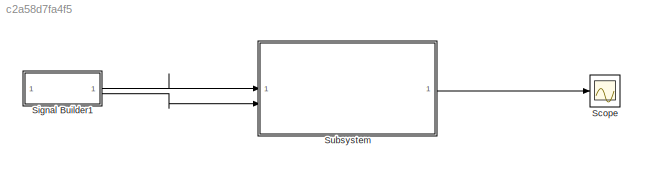
MODEL slx_c2a58d7fa4f5
KIND model
CONFIG AbsTol = auto
CONFIG EnableMultiTasking = off
CONFIG FixedStep = 0.001
CONFIG MaxStep = auto
CONFIG MinStep = auto
CONFIG RelTol = 1e-3
CONFIG SampleTimeConstraint = Unconstrained
CONFIG SolverName = ode4
CONFIG StartTime = 0.0
CONFIG StopTime = 20
BLOCK [Scope] Scope
  Floating = off
  NumInputPorts = 1
  ScopeSpecificationString = Simulink.scopes.TimeScopeBlockCfg('CurrentConfiguration', extmgr.ConfigurationSet(extmgr.Configuration('Core','General UI',true),extmgr.Configuration('Core','Source UI',true),extmgr.Configuration('Sources','WiredSimulink',true,'DataLoggingVariableName','ScopeData1'),extmgr.Configuration('Visuals','Time Domain',true),extmgr.Configuration('Tools','Plot Navigation',true),extmgr.Configuration('Tools',...<+40ch>
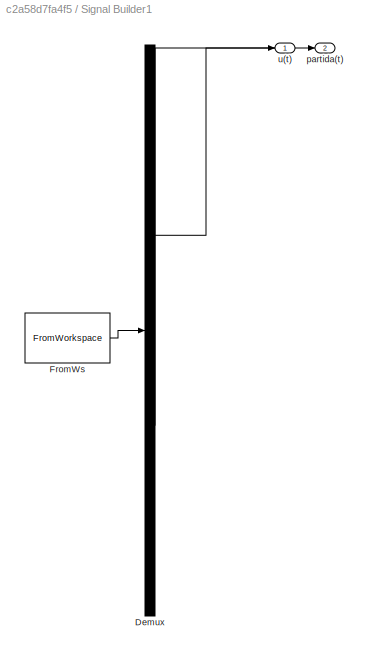
BLOCK [SubSystem] Signal Builder1
  ClipboardFcn = sigbuilder_block('clipboard');
  CloseFcn = sigbuilder_block('close');
  ContinueFcn = sigbuilder_block('continue');
  CopyFcn = sigbuilder_block('copy');
  DeleteFcn = sigbuilder_block('delete');
  LoadFcn = sigbuilder_block('load',[5.4 36 1141.2 516.6 ]);
  MaskHideContents = on
  ModelCloseFcn = sigbuilder_block('modelClose');
  NameChangeFcn = sigbuilder_block('namechange');
  OpenFcn = sigbuilder_block('open',[5.4 36 1141.2 516.6 ]);
  PauseFcn = sigbuilder_block('pause');
  PreSaveFcn = sigbuilder_block('preSave');
  StartFcn = sigbuilder_block('start');
  StopFcn = sigbuilder_block('stop');
  Tag = STV Subsys
BLOCK [Demux] Signal Builder1/Demux
  DisplayOption = none
  Outputs = 2
  Tag = STV Demux
BLOCK [FromWorkspace] Signal Builder1/FromWs
  Tag = STV FromWs
  VariableName = tuvar
BLOCK [Outport] Signal Builder1/partida(t)
  Port = 2
  Tag = STV Outport
BLOCK [Outport] Signal Builder1/u(t)
  Tag = STV Outport
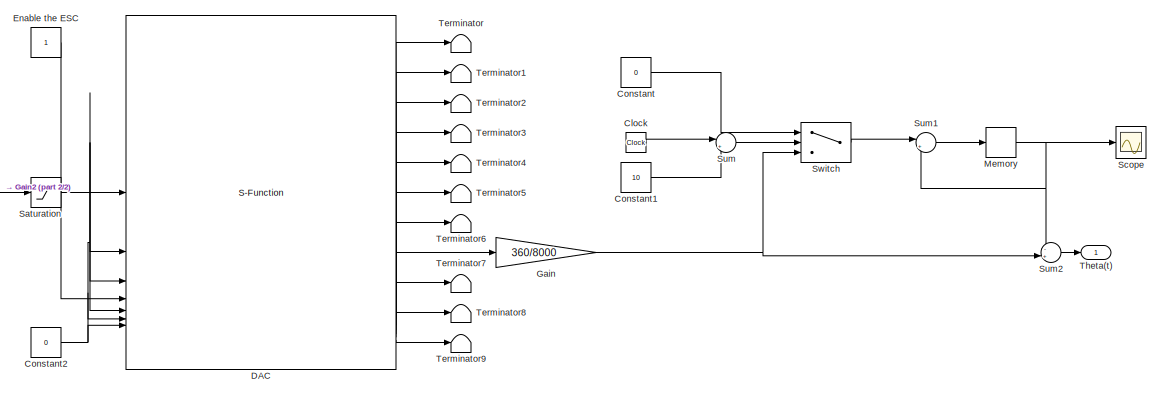
[diagram: Subsystem - part 1/2, right side, full height]
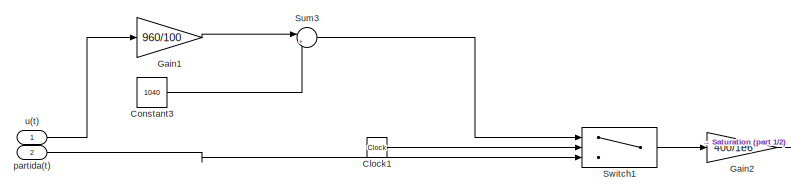
[diagram: Subsystem - part 2/2, middle left region]
BLOCK [SubSystem] Subsystem
BLOCK [Clock] Subsystem/Clock
BLOCK [Clock] Subsystem/Clock1
BLOCK [Constant] Subsystem/Constant
  Value = 0
BLOCK [Constant] Subsystem/Constant1
  Value = 10
BLOCK [Constant] Subsystem/Constant2
  Value = 0
BLOCK [Constant] Subsystem/Constant3
  Value = 1040
BLOCK [S-Function] Subsystem/DAC
  EnableBusSupport = off
  FunctionName = dacSfunction
  Parameters = serialPort,sampleTime,gpioOutCh1FinalState,gpioOutCh2FinalState,gpioOutCh3FinalState,pwmFrequency,pwmCh1FinalDuty,pwmCh2FinalDuty,pwmCh3FinalDuty,pwmCh4FinalDuty,enc1Mode,enc1ResetCount,enc1Direction,enc1Quadrature,enc1Filter,enc2Mode,enc2ResetCount,enc2Direction,enc2Quadrature,enc2Filter,enc3Mode,enc3ResetCount,enc3Direction,enc3Quadrature,enc3Filter
  SFcnIsStateOwnerBlock = off
  SFunctionDeploymentMode = off
BLOCK [Constant] Subsystem/Enable the ESC
BLOCK [Gain] Subsystem/Gain
  Gain = 360/8000
BLOCK [Gain] Subsystem/Gain1
  Gain = 960/100
BLOCK [Gain] Subsystem/Gain2
  Gain = 400/1e6
BLOCK [Memory] Subsystem/Memory
BLOCK [Saturate] Subsystem/Saturation
  LowerLimit = 0
  UpperLimit = 0.8
BLOCK [Scope] Subsystem/Scope
  Floating = off
  NumInputPorts = 1
  ScopeSpecificationString = Simulink.scopes.TimeScopeBlockCfg('CurrentConfiguration', extmgr.ConfigurationSet(extmgr.Configuration('Core','General UI',true),extmgr.Configuration('Core','Source UI',true),extmgr.Configuration('Sources','WiredSimulink',true),extmgr.Configuration('Visuals','Time Domain',true),extmgr.Configuration('Tools','Plot Navigation',true),extmgr.Configuration('Tools','Measurements',true)),'Version','2022a'...<+1ch>
BLOCK [Sum] Subsystem/Sum
  Inputs = |+-
BLOCK [Sum] Subsystem/Sum1
  Inputs = |++
BLOCK [Sum] Subsystem/Sum2
  Inputs = -+|
BLOCK [Sum] Subsystem/Sum3
  Inputs = |++
BLOCK [Switch] Subsystem/Switch
  Criteria = u2 ~= 0
  InputSameDT = off
  SaturateOnIntegerOverflow = off
BLOCK [Switch] Subsystem/Switch1
  InputSameDT = off
  SaturateOnIntegerOverflow = off
  Threshold = 10
BLOCK [Terminator] Subsystem/Terminator
BLOCK [Terminator] Subsystem/Terminator1
BLOCK [Terminator] Subsystem/Terminator2
BLOCK [Terminator] Subsystem/Terminator3
BLOCK [Terminator] Subsystem/Terminator4
BLOCK [Terminator] Subsystem/Terminator5
  NameLocation = left
BLOCK [Terminator] Subsystem/Terminator6
BLOCK [Terminator] Subsystem/Terminator7
BLOCK [Terminator] Subsystem/Terminator8
BLOCK [Terminator] Subsystem/Terminator9
BLOCK [Outport] Subsystem/Theta(t)
BLOCK [Inport] Subsystem/partida(t)
  Port = 2
BLOCK [Inport] Subsystem/u(t)
LINE Signal Builder1:1 -> Subsystem:1
LINE Signal Builder1:2 -> Subsystem:2
LINE Subsystem/Clock1:1 -> Subsystem/Switch1:2
LINE Subsystem/Clock:1 -> Subsystem/Sum:1
LINE Subsystem/Constant1:1 -> Subsystem/Sum:2
NET Subsystem/Constant2:1 -> Subsystem/DAC:2, Subsystem/DAC:3, Subsystem/DAC:5, Subsystem/DAC:6, Subsystem/DAC:7
LINE Subsystem/Constant3:1 -> Subsystem/Sum3:2
LINE Subsystem/Constant:1 -> Subsystem/Switch:1
LINE Subsystem/DAC:1 -> Subsystem/Terminator:1
LINE Subsystem/DAC:10 -> Subsystem/Terminator8:1
LINE Subsystem/DAC:11 -> Subsystem/Terminator9:1
LINE Subsystem/DAC:2 -> Subsystem/Terminator1:1
LINE Subsystem/DAC:3 -> Subsystem/Terminator2:1
LINE Subsystem/DAC:4 -> Subsystem/Terminator3:1
LINE Subsystem/DAC:5 -> Subsystem/Terminator4:1
LINE Subsystem/DAC:6 -> Subsystem/Terminator5:1
LINE Subsystem/DAC:7 -> Subsystem/Terminator6:1
LINE Subsystem/DAC:8 -> Subsystem/Gain:1
LINE Subsystem/DAC:9 -> Subsystem/Terminator7:1
LINE Subsystem/Enable the ESC:1 -> Subsystem/DAC:1
LINE Subsystem/Gain1:1 -> Subsystem/Sum3:1
LINE Subsystem/Gain2:1 -> Subsystem/Saturation:1
NET Subsystem/Gain:1 -> Subsystem/Sum2:2, Subsystem/Switch:3
NET Subsystem/Memory:1 -> Subsystem/Scope:1, Subsystem/Sum1:2, Subsystem/Sum2:1
LINE Subsystem/Saturation:1 -> Subsystem/DAC:4
LINE Subsystem/Sum1:1 -> Subsystem/Memory:1
LINE Subsystem/Sum2:1 -> Subsystem/Theta(t):1
LINE Subsystem/Sum3:1 -> Subsystem/Switch1:1
LINE Subsystem/Sum:1 -> Subsystem/Switch:2
LINE Subsystem/Switch1:1 -> Subsystem/Gain2:1
LINE Subsystem/Switch:1 -> Subsystem/Sum1:1
LINE Subsystem/partida(t):1 -> Subsystem/Switch1:3
LINE Subsystem/u(t):1 -> Subsystem/Gain1:1
LINE Subsystem:1 -> Scope:1
note: NET lines group one-source signal fan-out (src -> all destinations, sorted); 1:1 wires keep LINE
